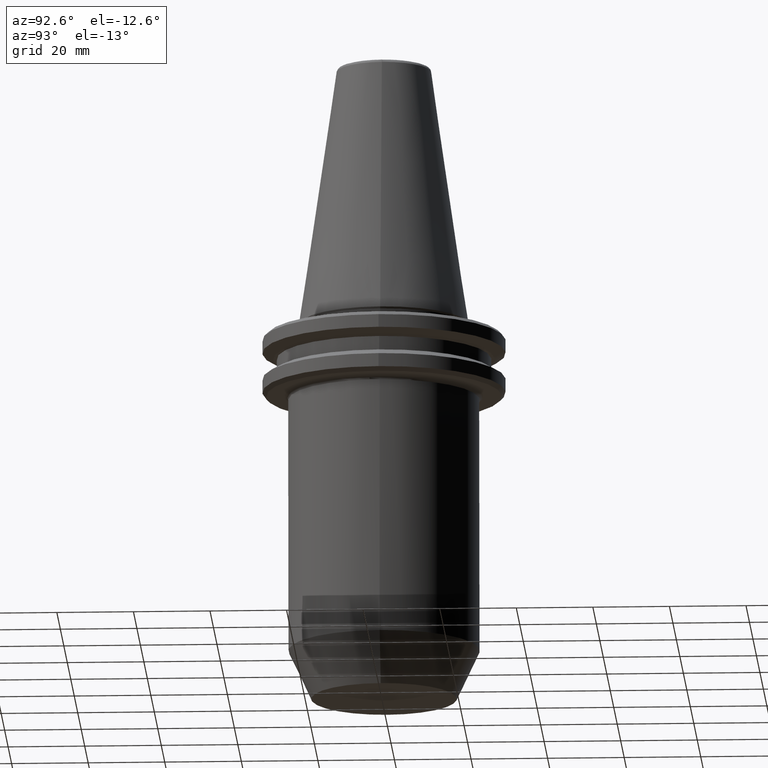
[diagram: clean part render]
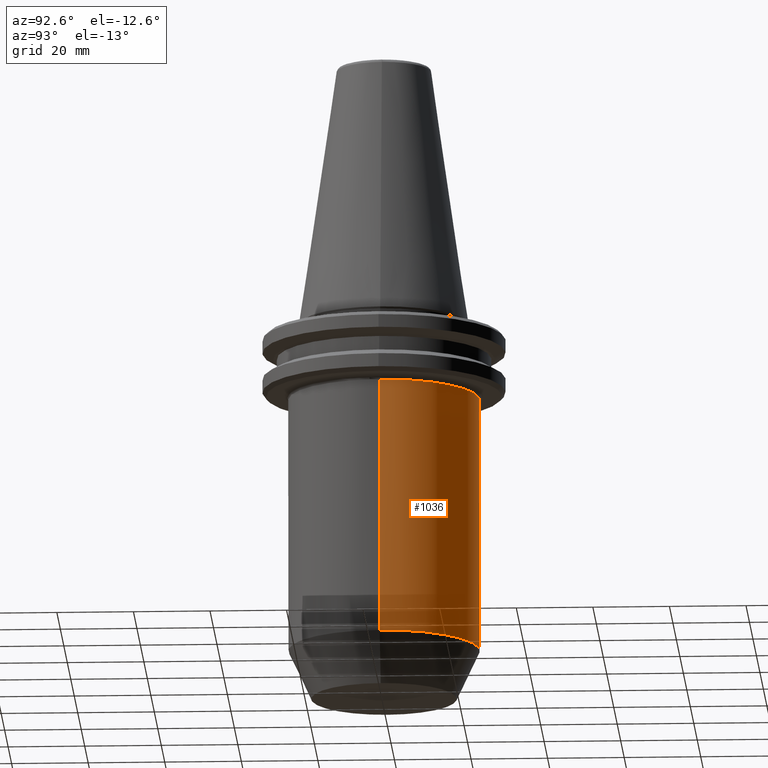
[diagram: same view with one face highlighted and labeled with its STEP entity id]
A machine part, auxiliary view. The second image highlights one B-rep face of the part: STEP entity #1036.
In plain terms, the highlighted cylindrical surface (partial cylindrical patch) has radius 25 mm, axis along (0, 0, 1).
Its self-contained STEP definition (entity closure, byte-faithful):
#27 = FACE_OUTER_BOUND ( 'NONE', #267, .T. ) ;
#116 = DIRECTION ( 'NONE',  ( 1.000000000000000000, 0.0000000000000000000, 0.0000000000000000000 ) ) ;
#120 = DIRECTION ( 'NONE',  ( -0.0000000000000000000, -0.0000000000000000000, -1.000000000000000000 ) ) ;
#122 = CARTESIAN_POINT ( 'NONE',  ( 0.0000000000000000000, 0.0000000000000000000, -20.10000000000000900 ) ) ;
#145 = ORIENTED_EDGE ( 'NONE', *, *, #1030, .T. ) ;
#264 = EDGE_CURVE ( 'NONE', #516, #1013, #406, .T. ) ;
#267 = EDGE_LOOP ( 'NONE', ( #1369, #145, #890, #1386, #1423 ) ) ;
#269 = DIRECTION ( 'NONE',  ( 1.000000000000000000, 0.0000000000000000000, 0.0000000000000000000 ) ) ;
#273 = DIRECTION ( 'NONE',  ( 0.0000000000000000000, 0.0000000000000000000, 1.000000000000000000 ) ) ;
#274 = CARTESIAN_POINT ( 'NONE',  ( 0.0000000000000000000, 0.0000000000000000000, -87.13295847694239200 ) ) ;
#277 = CARTESIAN_POINT ( 'NONE',  ( 25.00000000000000400, 0.0000000000000000000, -20.10000000000000900 ) ) ;
#317 = CIRCLE ( 'NONE', #1370, 25.00000000000000400 ) ;
#334 = LINE ( 'NONE', #1253, #580 ) ;
#354 = EDGE_CURVE ( 'NONE', #798, #1278, #317, .T. ) ;
#369 = AXIS2_PLACEMENT_3D ( 'NONE', #1294, #1221, #756 ) ;
#406 = CIRCLE ( 'NONE', #488, 25.00000000000000400 ) ;
#488 = AXIS2_PLACEMENT_3D ( 'NONE', #274, #273, #269 ) ;
#516 = VERTEX_POINT ( 'NONE', #1310 ) ;
#528 = EDGE_CURVE ( 'NONE', #516, #1235, #1527, .T. ) ;
#538 = CARTESIAN_POINT ( 'NONE',  ( 23.68960742604233600, 7.987646712267640200, -20.10000000000000900 ) ) ;
#580 = VECTOR ( 'NONE', #1007, 1000.000000000000000 ) ;
#588 = CARTESIAN_POINT ( 'NONE',  ( 25.00000000000000400, 0.0000000000000000000, 82.95681253582424100 ) ) ;
#683 = CARTESIAN_POINT ( 'NONE',  ( -25.00000000000000400, 3.061616997868383400E-015, -20.10000000000000900 ) ) ;
#690 = EDGE_CURVE ( 'NONE', #1278, #1235, #1249, .T. ) ;
#756 = DIRECTION ( 'NONE',  ( -1.000000000000000000, 0.0000000000000000000, 0.0000000000000000000 ) ) ;
#798 = VERTEX_POINT ( 'NONE', #683 ) ;
#890 = ORIENTED_EDGE ( 'NONE', *, *, #354, .T. ) ;
#967 = DIRECTION ( 'NONE',  ( 0.0000000000000000000, 0.0000000000000000000, 1.000000000000000000 ) ) ;
#978 = DIRECTION ( 'NONE',  ( 0.0000000000000000000, 0.0000000000000000000, 1.000000000000000000 ) ) ;
#1002 = DIRECTION ( 'NONE',  ( 1.000000000000000000, 0.0000000000000000000, 0.0000000000000000000 ) ) ;
#1007 = DIRECTION ( 'NONE',  ( 0.0000000000000000000, 0.0000000000000000000, 1.000000000000000000 ) ) ;
#1013 = VERTEX_POINT ( 'NONE', #1269 ) ;
#1030 = EDGE_CURVE ( 'NONE', #1013, #798, #334, .T. ) ;
#1036 = ADVANCED_FACE ( 'NONE', ( #27 ), #1260, .T. ) ;
#1221 = DIRECTION ( 'NONE',  ( 0.0000000000000000000, 0.0000000000000000000, -1.000000000000000000 ) ) ;
#1235 = VERTEX_POINT ( 'NONE', #277 ) ;
#1249 = CIRCLE ( 'NONE', #369, 25.00000000000000400 ) ;
#1253 = CARTESIAN_POINT ( 'NONE',  ( -25.00000000000000400, 3.061616997868383400E-015, 82.95681253582424100 ) ) ;
#1260 = CYLINDRICAL_SURFACE ( 'NONE', #1388, 25.00000000000000400 ) ;
#1269 = CARTESIAN_POINT ( 'NONE',  ( -25.00000000000001400, 3.061616997868384600E-015, -87.13295847694239200 ) ) ;
#1278 = VERTEX_POINT ( 'NONE', #538 ) ;
#1294 = CARTESIAN_POINT ( 'NONE',  ( 0.0000000000000000000, 0.0000000000000000000, -20.10000000000000900 ) ) ;
#1310 = CARTESIAN_POINT ( 'NONE',  ( 25.00000000000001400, 0.0000000000000000000, -87.13295847694239200 ) ) ;
#1369 = ORIENTED_EDGE ( 'NONE', *, *, #264, .T. ) ;
#1370 = AXIS2_PLACEMENT_3D ( 'NONE', #122, #120, #116 ) ;
#1386 = ORIENTED_EDGE ( 'NONE', *, *, #690, .T. ) ;
#1388 = AXIS2_PLACEMENT_3D ( 'NONE', #1481, #967, #1002 ) ;
#1423 = ORIENTED_EDGE ( 'NONE', *, *, #528, .F. ) ;
#1469 = VECTOR ( 'NONE', #978, 1000.000000000000000 ) ;
#1481 = CARTESIAN_POINT ( 'NONE',  ( 0.0000000000000000000, 0.0000000000000000000, 82.95681253582424100 ) ) ;
#1527 = LINE ( 'NONE', #588, #1469 ) ;